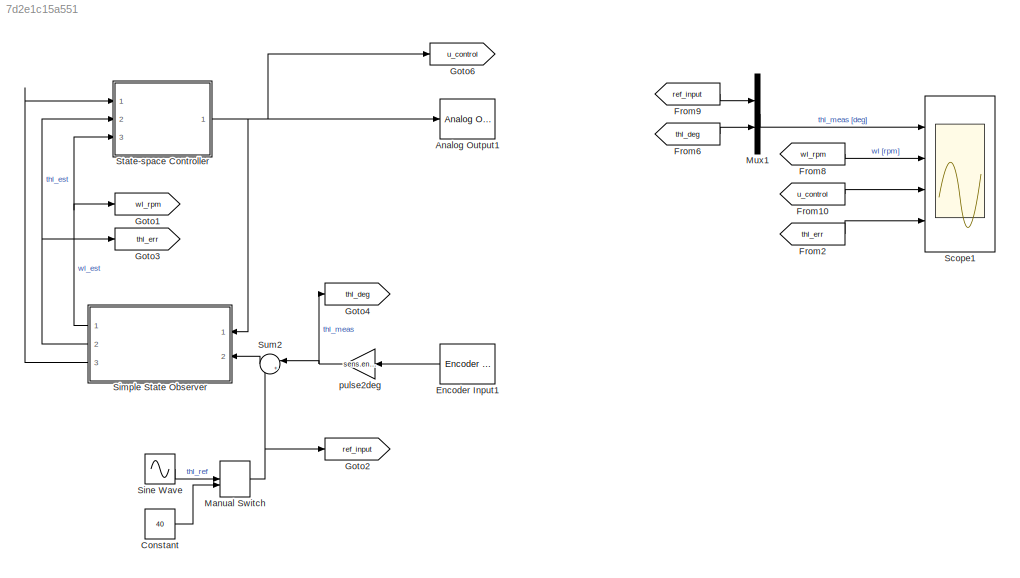
MODEL slx_7d2e1c15a551
KIND model
CONFIG AbsTol = auto
CONFIG EnableMultiTasking = off
CONFIG FixedStep = auto
CONFIG MaxStep = auto
CONFIG MinStep = auto
CONFIG RelTol = 1e-3
CONFIG SampleTimeConstraint = Unconstrained
CONFIG SolverName = ode45
CONFIG StartTime = 0.0
CONFIG StopTime = 5
BLOCK [Reference] Analog Output1  REF=sldrtlib/Analog Output
  AttributesFormatString = National Instruments\nPCI-6221 [auto]
  Ports = [1]
  SourceBlock = sldrtlib/Analog Output
  SourceProductBaseCode = WT
  SourceType = Simulink Desktop Real-Time Analog Output
BLOCK [Constant] Constant
  Value = 40
BLOCK [Reference] Encoder Input1  REF=sldrtlib/Encoder Input
  AttributesFormatString = National Instruments\nPCI-6221 [auto]
  Ports = [0, 1]
  SourceBlock = sldrtlib/Encoder Input
  SourceProductBaseCode = WT
  SourceType = Simulink Desktop Real-Time Encoder Input
BLOCK [From] From10
  GotoTag = u_control
BLOCK [From] From2
  GotoTag = thl_err
BLOCK [From] From6
  GotoTag = thl_deg
BLOCK [From] From8
  GotoTag = wl_rpm
BLOCK [From] From9
  GotoTag = ref_input
BLOCK [Goto] Goto1
  GotoTag = wl_rpm
BLOCK [Goto] Goto2
  GotoTag = ref_input
BLOCK [Goto] Goto3
  GotoTag = thl_err
BLOCK [Goto] Goto4
  GotoTag = thl_deg
BLOCK [Goto] Goto6
  GotoTag = u_control
BLOCK [ManualSwitch] Manual Switch
  CurrentSetting = 0
BLOCK [Mux] Mux1
  DisplayOption = bar
  Inputs = 2
  Ports = [2, 1]
BLOCK [Scope] Scope1
  Floating = off
  NumInputPorts = 4
  Ports = [4]
  ScopeSpecificationString = Simulink.scopes.TimeScopeBlockCfg('CurrentConfiguration', extmgr.ConfigurationSet(extmgr.Configuration('Core','General UI',true),extmgr.Configuration('Core','Source UI',true),extmgr.Configuration('Sources','WiredSimulink',true,'DataLogging',true,'DataLoggingSaveFormat','StructureWithTime','DataLoggingVariableName','MotorData'),extmgr.Configuration('Visuals','Time Domain',true,'SerializedDisplays',...<+3579ch>
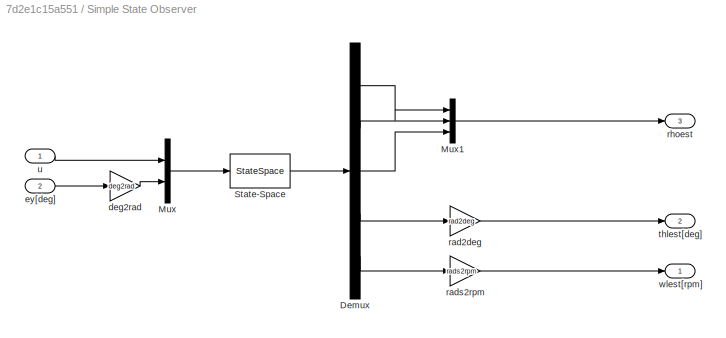
BLOCK [SubSystem] Simple State Observer
  Ports = [2, 3]
  RequestExecContextInheritance = off
BLOCK [Demux] Simple State Observer/Demux
  Outputs = 5
  Ports = [1, 5]
BLOCK [Mux] Simple State Observer/Mux
  DisplayOption = bar
  Inputs = 2
  Ports = [2, 1]
BLOCK [Mux] Simple State Observer/Mux1
  DisplayOption = bar
  Inputs = 3
  Ports = [3, 1]
BLOCK [StateSpace] Simple State Observer/State-Space
  A = Aest
  B = Best
  C = Cest
  D = Dest
  InitialCondition = 0
  Ports = [1, 1]
BLOCK [Gain] Simple State Observer/deg2rad
  Gain = deg2rad
BLOCK [Inport] Simple State Observer/ey[deg]
  Port = 2
BLOCK [Gain] Simple State Observer/rad2deg
  Gain = rad2deg
BLOCK [Gain] Simple State Observer/rads2rpm
  Gain = rads2rpm
BLOCK [Outport] Simple State Observer/rhoest
  Port = 3
BLOCK [Outport] Simple State Observer/thlest[deg]
  Port = 2
BLOCK [Inport] Simple State Observer/u
BLOCK [Outport] Simple State Observer/wlest[rpm]
BLOCK [Sin] Sine Wave
  Amplitude = Ar
  Frequency = 2*pi/Tr
  Ports = [0, 1]
  SampleTime = 0
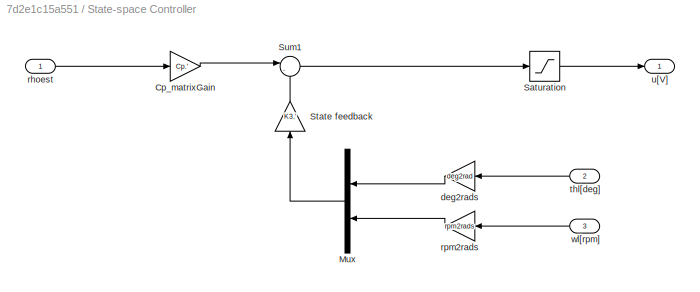
BLOCK [SubSystem] State-space Controller
  Ports = [3, 1]
  RequestExecContextInheritance = off
BLOCK [Gain] State-space Controller/Cp_matrixGain
  Gain = Cp.'
  Multiplication = Matrix(u*K)
BLOCK [Mux] State-space Controller/Mux
  DisplayOption = bar
  Inputs = 2
  Ports = [2, 1]
BLOCK [Saturate] State-space Controller/Saturation
  LowerLimit = -10
  UpperLimit = 10
BLOCK [Gain] State-space Controller/State feedback
  Gain = K3.'
  Multiplication = Matrix(u*K)
  NameLocation = right
BLOCK [Sum] State-space Controller/Sum1
  Inputs = |--
  Ports = [2, 1]
BLOCK [Gain] State-space Controller/deg2rads
  Gain = deg2rad
  NameLocation = top
BLOCK [Inport] State-space Controller/rhoest
BLOCK [Gain] State-space Controller/rpm2rads
  Gain = rpm2rads
BLOCK [Inport] State-space Controller/thl[deg]
  Port = 2
BLOCK [Outport] State-space Controller/u[V]
BLOCK [Inport] State-space Controller/wl[rpm]
  Port = 3
BLOCK [Sum] Sum2
  Inputs = |+-
  Ports = [2, 1]
BLOCK [Gain] pulse2deg
  Gain = sens.enc.pulse2deg
LINE Constant:1 -> Manual Switch:2
LINE Encoder Input1:1 -> pulse2deg:1
LINE From10:1 -> Scope1:3
LINE From2:1 -> Scope1:4
LINE From6:1 -> Mux1:2
LINE From8:1 -> Scope1:2
LINE From9:1 -> Mux1:1
NET Manual Switch:1 -> Goto2:1, Sum2:2
LINE Mux1:1 -> Scope1:1
LINE Simple State Observer/Demux:1 -> Simple State Observer/Mux1:1
LINE Simple State Observer/Demux:2 -> Simple State Observer/Mux1:2
LINE Simple State Observer/Demux:3 -> Simple State Observer/Mux1:3
LINE Simple State Observer/Demux:4 -> Simple State Observer/rad2deg:1
LINE Simple State Observer/Demux:5 -> Simple State Observer/rads2rpm:1
LINE Simple State Observer/Mux1:1 -> Simple State Observer/rhoest:1
LINE Simple State Observer/Mux:1 -> Simple State Observer/State-Space:1
LINE Simple State Observer/State-Space:1 -> Simple State Observer/Demux:1
LINE Simple State Observer/deg2rad:1 -> Simple State Observer/Mux:2
LINE Simple State Observer/ey[deg]:1 -> Simple State Observer/deg2rad:1
LINE Simple State Observer/rad2deg:1 -> Simple State Observer/thlest[deg]:1
LINE Simple State Observer/rads2rpm:1 -> Simple State Observer/wlest[rpm]:1
LINE Simple State Observer/u:1 -> Simple State Observer/Mux:1
NET Simple State Observer:1 -> Goto1:1, State-space Controller:3
NET Simple State Observer:2 -> Goto3:1, State-space Controller:2
LINE Simple State Observer:3 -> State-space Controller:1
LINE Sine Wave:1 -> Manual Switch:1
LINE State-space Controller/Cp_matrixGain:1 -> State-space Controller/Sum1:1
LINE State-space Controller/Mux:1 -> State-space Controller/State feedback:1
LINE State-space Controller/Saturation:1 -> State-space Controller/u[V]:1
LINE State-space Controller/State feedback:1 -> State-space Controller/Sum1:2
LINE State-space Controller/Sum1:1 -> State-space Controller/Saturation:1
LINE State-space Controller/deg2rads:1 -> State-space Controller/Mux:1
LINE State-space Controller/rhoest:1 -> State-space Controller/Cp_matrixGain:1
LINE State-space Controller/rpm2rads:1 -> State-space Controller/Mux:2
LINE State-space Controller/thl[deg]:1 -> State-space Controller/deg2rads:1
LINE State-space Controller/wl[rpm]:1 -> State-space Controller/rpm2rads:1
NET State-space Controller:1 -> Analog Output1:1, Goto6:1, Simple State Observer:1
LINE Sum2:1 -> Simple State Observer:2
NET pulse2deg:1 -> Goto4:1, Sum2:1
note: NET lines group one-source signal fan-out (src -> all destinations, sorted); 1:1 wires keep LINE
